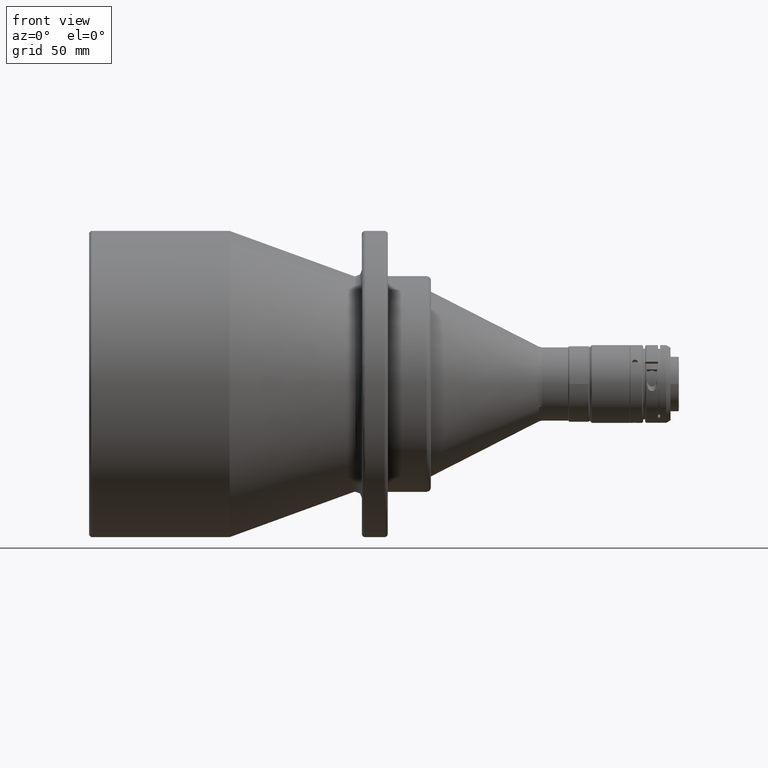
[diagram: clean part render]
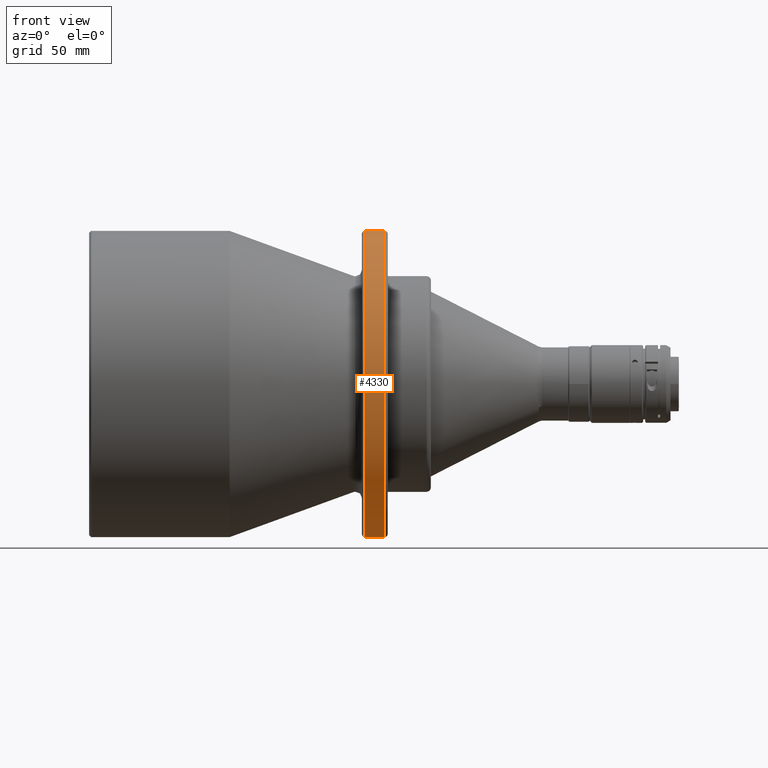
[diagram: same view with one face highlighted and labeled with its STEP entity id]
A machine part, front view. The second image highlights one B-rep face of the part: STEP entity #4330.
In plain terms, the highlighted cylindrical surface (partial cylindrical patch) has radius 71 mm, axis along (-1, 0, 0).
Its self-contained STEP definition (entity closure, byte-faithful):
#7 = DIRECTION ( 'NONE',  ( 0.0000000000000000000, 0.0000000000000000000, 1.000000000000000000 ) ) ;
#1099 = DIRECTION ( 'NONE',  ( -1.000000000000000000, 0.0000000000000000000, 0.0000000000000000000 ) ) ;
#1305 = CARTESIAN_POINT ( 'NONE',  ( 127.9999999990000800, 0.0000000000000000000, 71.00000000000000000 ) ) ;
#1414 = EDGE_CURVE ( 'NONE', #3594, #3782, #2380, .T. ) ;
#1447 = CARTESIAN_POINT ( 'NONE',  ( 137.0000000000000000, 0.0000000000000000000, 0.0000000000000000000 ) ) ;
#1504 = CARTESIAN_POINT ( 'NONE',  ( 137.0000000000000000, 8.694992273946208100E-015, -71.00000000000001400 ) ) ;
#1634 = CARTESIAN_POINT ( 'NONE',  ( 137.0000000000000000, 0.0000000000000000000, 71.00000000000001400 ) ) ;
#1749 = VERTEX_POINT ( 'NONE', #5409 ) ;
#1864 = DIRECTION ( 'NONE',  ( 0.0000000000000000000, -1.000000000000000000, 0.0000000000000000000 ) ) ;
#1961 = DIRECTION ( 'NONE',  ( -1.000000000000000000, 0.0000000000000000000, 0.0000000000000000000 ) ) ;
#2103 = FACE_OUTER_BOUND ( 'NONE', #5803, .T. ) ;
#2345 = LINE ( 'NONE', #1634, #4626 ) ;
#2380 = LINE ( 'NONE', #1504, #3685 ) ;
#2475 = DIRECTION ( 'NONE',  ( 0.0000000000000000000, 0.0000000000000000000, 1.000000000000000000 ) ) ;
#2573 = ORIENTED_EDGE ( 'NONE', *, *, #4171, .F. ) ;
#2663 = VERTEX_POINT ( 'NONE', #1305 ) ;
#2673 = CARTESIAN_POINT ( 'NONE',  ( 137.0000000000000000, 0.0000000000000000000, 0.0000000000000000000 ) ) ;
#2994 = CIRCLE ( 'NONE', #3110, 70.99999999999998600 ) ;
#3110 = AXIS2_PLACEMENT_3D ( 'NONE', #3355, #3423, #1864 ) ;
#3136 = DIRECTION ( 'NONE',  ( 1.000000000000000000, -0.0000000000000000000, -0.0000000000000000000 ) ) ;
#3294 = ORIENTED_EDGE ( 'NONE', *, *, #1414, .F. ) ;
#3355 = CARTESIAN_POINT ( 'NONE',  ( 127.9999999990001100, 0.0000000000000000000, 0.0000000000000000000 ) ) ;
#3423 = DIRECTION ( 'NONE',  ( -1.000000000000000000, -1.954618001100627600E-016, -0.0000000000000000000 ) ) ;
#3594 = VERTEX_POINT ( 'NONE', #3599 ) ;
#3599 = CARTESIAN_POINT ( 'NONE',  ( 137.0000000000000000, -2.184351513688277200E-008, -71.00000000000001400 ) ) ;
#3685 = VECTOR ( 'NONE', #5725, 1000.000000000000000 ) ;
#3782 = VERTEX_POINT ( 'NONE', #5340 ) ;
#3821 = AXIS2_PLACEMENT_3D ( 'NONE', #2673, #3136, #7 ) ;
#3909 = EDGE_CURVE ( 'NONE', #1749, #3594, #6191, .T. ) ;
#4171 = EDGE_CURVE ( 'NONE', #3782, #2663, #2994, .T. ) ;
#4323 = CYLINDRICAL_SURFACE ( 'NONE', #5438, 71.00000000000001400 ) ;
#4330 = ADVANCED_FACE ( 'NONE', ( #2103 ), #4323, .T. ) ;
#4626 = VECTOR ( 'NONE', #1099, 1000.000000000000000 ) ;
#5047 = EDGE_CURVE ( 'NONE', #1749, #2663, #2345, .T. ) ;
#5340 = CARTESIAN_POINT ( 'NONE',  ( 127.9999999990000800, -7.281171712294257400E-009, -71.00000000000000000 ) ) ;
#5409 = CARTESIAN_POINT ( 'NONE',  ( 137.0000000000000000, -3.187673809220023100E-009, 71.00000000000001400 ) ) ;
#5438 = AXIS2_PLACEMENT_3D ( 'NONE', #1447, #1961, #2475 ) ;
#5711 = ORIENTED_EDGE ( 'NONE', *, *, #3909, .F. ) ;
#5725 = DIRECTION ( 'NONE',  ( -1.000000000000000000, 0.0000000000000000000, 0.0000000000000000000 ) ) ;
#5803 = EDGE_LOOP ( 'NONE', ( #3294, #5711, #6629, #2573 ) ) ;
#6191 = CIRCLE ( 'NONE', #3821, 71.00000000000001400 ) ;
#6629 = ORIENTED_EDGE ( 'NONE', *, *, #5047, .T. ) ;